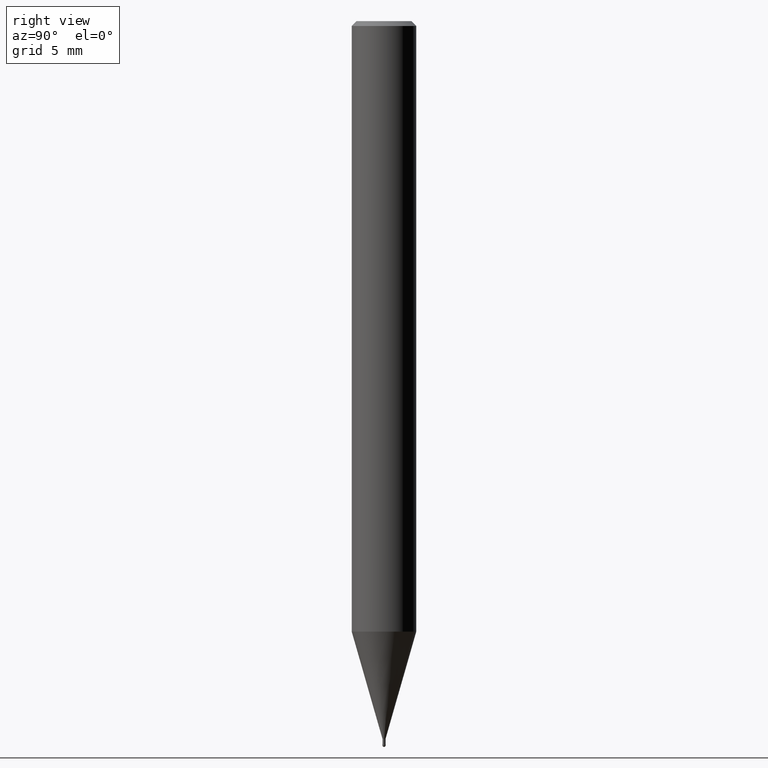
[diagram: clean part render]
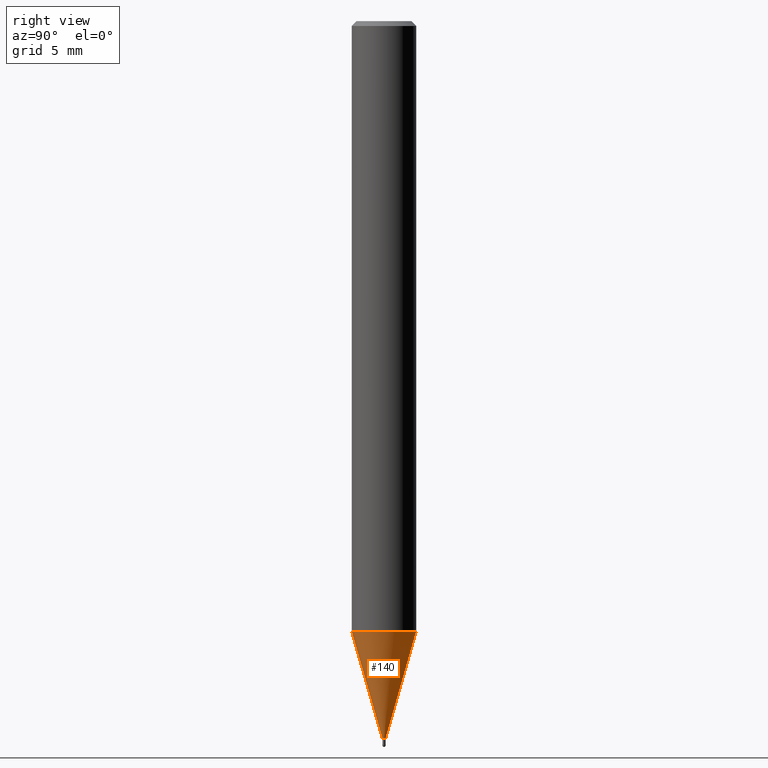
[diagram: same view with one face highlighted and labeled with its STEP entity id]
A machine part, right view. The second image highlights one B-rep face of the part: STEP entity #140.
In plain terms, the highlighted conical surface has half-angle 15.999 deg.
Its self-contained STEP definition (entity closure, byte-faithful):
#94=EDGE_CURVE('',#194,#124,#235,.T.);
#124=VERTEX_POINT('',#269);
#134=EDGE_CURVE('',#166,#214,#281,.T.);
#140=ADVANCED_FACE('',(#288),#289,.T.);
#166=VERTEX_POINT('',#316);
#194=VERTEX_POINT('',#349);
#210=EDGE_CURVE('',#166,#124,#368,.T.);
#212=EDGE_CURVE('',#214,#194,#370,.T.);
#214=VERTEX_POINT('',#372);
#235=LINE('',#386,#387);
#269=CARTESIAN_POINT('',(2.44915147732706E-016,-1.99995,-37.856));
#281=LINE('',#444,#445);
#288=FACE_OUTER_BOUND('',#452,.T.);
#289=CONICAL_SURFACE('',#453,1.04745,0.279233718115795);
#316=CARTESIAN_POINT('',(0.0,1.99995,-37.856));
#349=CARTESIAN_POINT('',(1.16276373295435E-017,-0.09495,-44.5));
#368=CIRCLE('',#552,1.99995);
#370=CIRCLE('',#555,0.09495);
#372=CARTESIAN_POINT('',(0.0,0.09495,-44.5));
#386=CARTESIAN_POINT('',(1.28271392531125E-016,-1.04745,-41.178));
#387=VECTOR('',#559,1.0);
#444=CARTESIAN_POINT('',(-1.28271392531125E-016,1.04745,-41.178));
#445=VECTOR('',#622,1.0);
#452=EDGE_LOOP('',(#632,#633,#634,#635));
#453=AXIS2_PLACEMENT_3D('',#636,#637,#638);
#552=AXIS2_PLACEMENT_3D('',#734,#735,#736);
#555=AXIS2_PLACEMENT_3D('',#737,#738,#739);
#559=DIRECTION('',(3.37524935540219E-017,-0.275619128127744,0.961266922457078));
#622=DIRECTION('',(3.37524935540219E-017,-0.275619128127744,-0.961266922457078));
#632=ORIENTED_EDGE('',*,*,#134,.F.);
#633=ORIENTED_EDGE('',*,*,#210,.T.);
#634=ORIENTED_EDGE('',*,*,#94,.F.);
#635=ORIENTED_EDGE('',*,*,#212,.F.);
#636=CARTESIAN_POINT('',(0.0,0.0,-41.178));
#637=DIRECTION('',(-0.0,-0.0,1.0));
#638=DIRECTION('',(0.0,1.0,0.0));
#734=CARTESIAN_POINT('',(0.0,0.0,-37.856));
#735=DIRECTION('',(0.0,0.0,-1.0));
#736=DIRECTION('',(0.0,1.0,0.0));
#737=CARTESIAN_POINT('',(0.0,0.0,-44.5));
#738=DIRECTION('',(0.0,0.0,-1.0));
#739=DIRECTION('',(0.0,1.0,0.0));